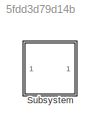
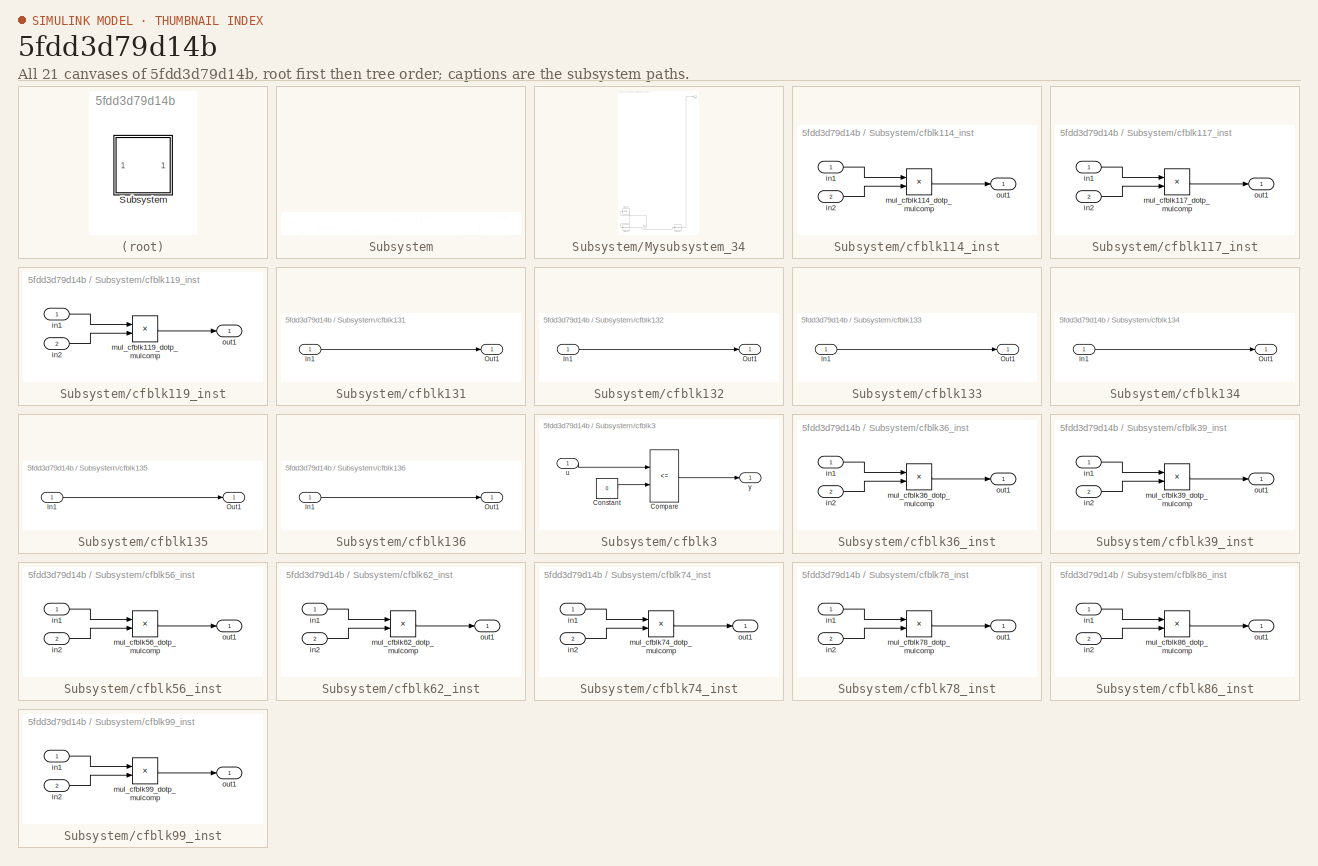
[diagram: thumbnail index - all 21 canvases of the model, root first then tree order]
MODEL slx_5fdd3d79d14b
KIND model
CONFIG AbsTol = auto
CONFIG EnableMultiTasking = off
CONFIG FixedStep = auto
CONFIG MaxStep = auto
CONFIG MinStep = auto
CONFIG RelTol = 1e-3
CONFIG SampleTimeConstraint = Unconstrained
CONFIG SolverName = VariableStepAuto
CONFIG StartTime = 0.0
CONFIG StopTime = 10.0
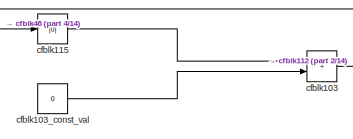
[diagram: Subsystem - part 1/14, top right region]
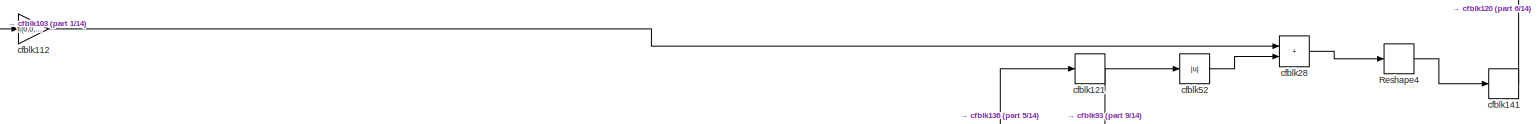
[diagram: Subsystem - part 2/14, top right region]
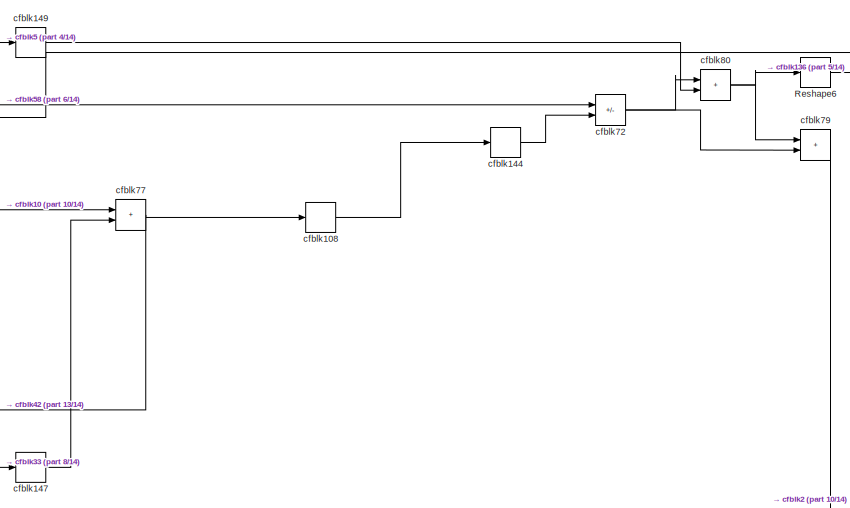
[diagram: Subsystem - part 3/14, middle right region]
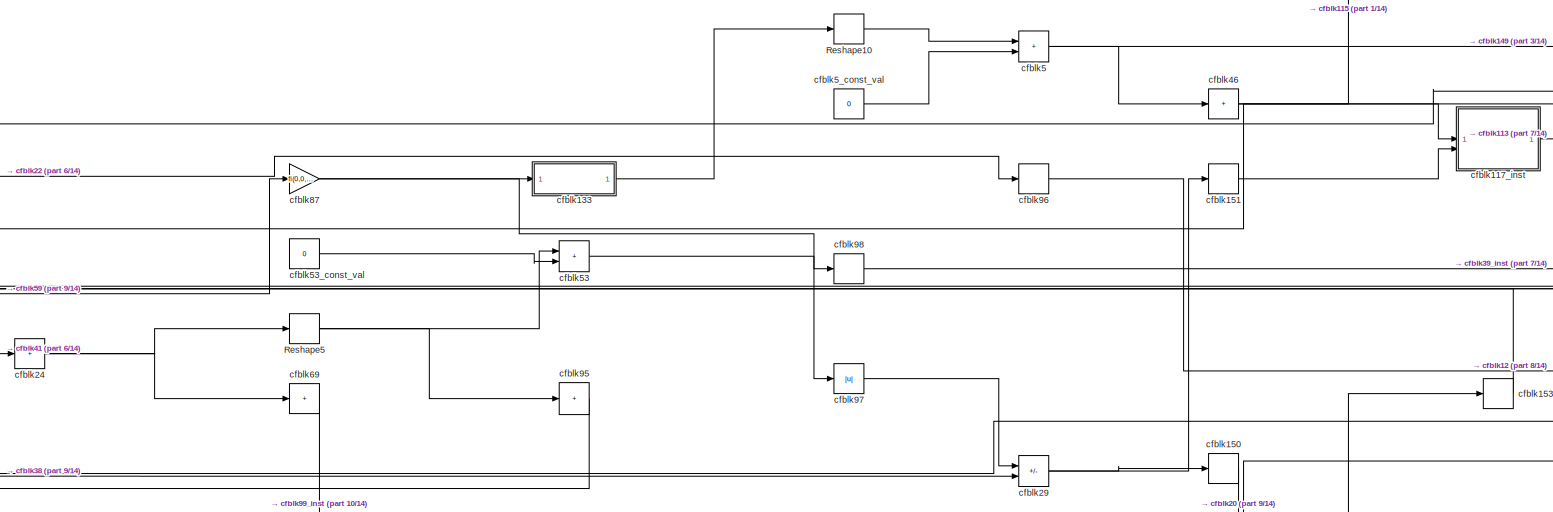
[diagram: Subsystem - part 4/14, central region]
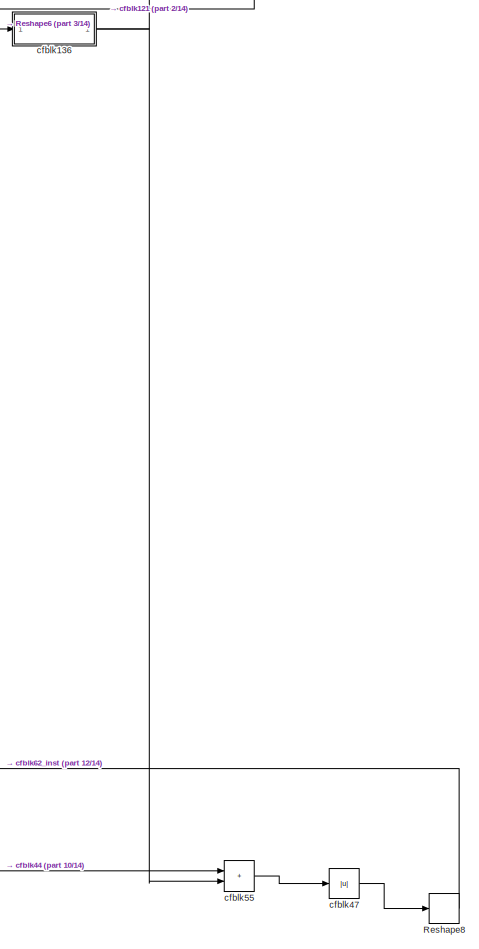
[diagram: Subsystem - part 5/14, right side, full height]
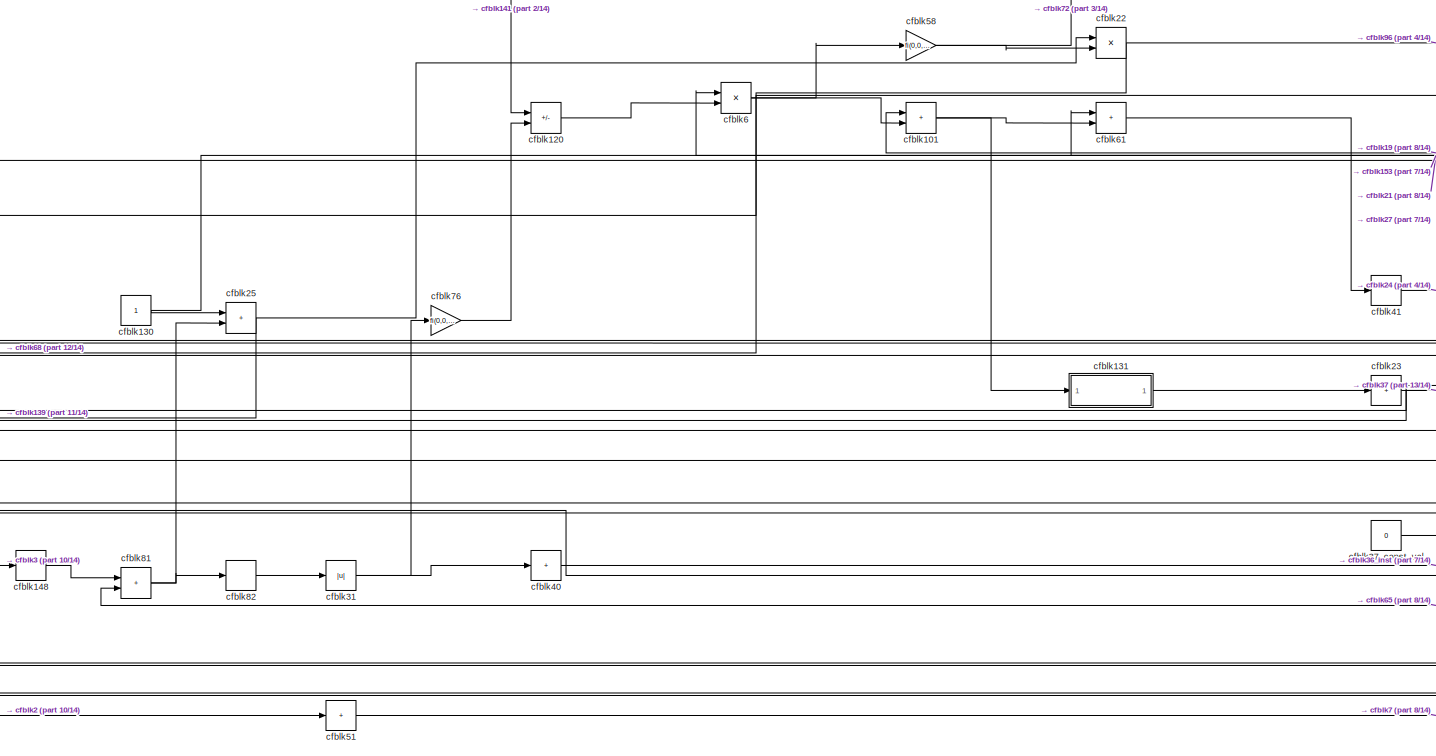
[diagram: Subsystem - part 6/14, central region]
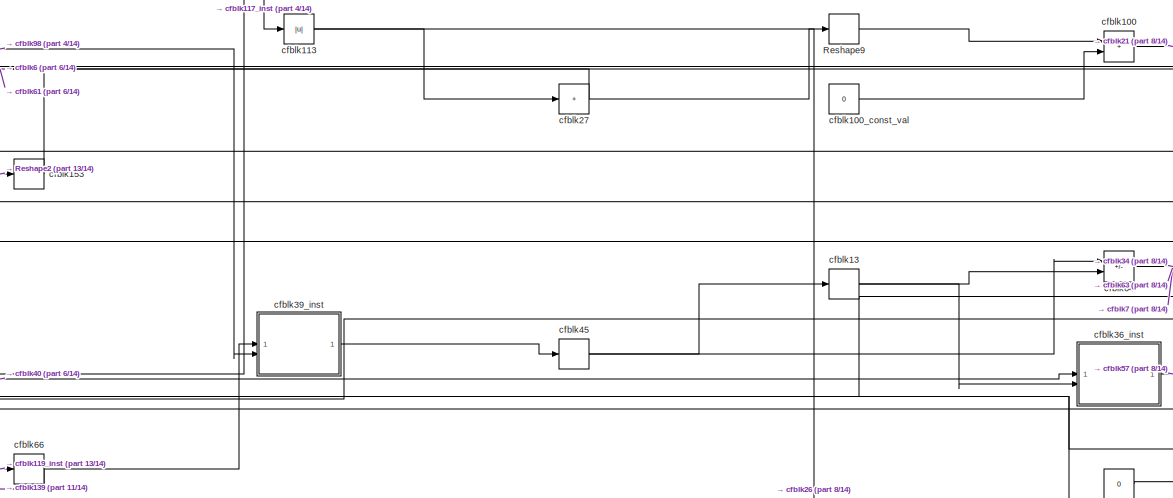
[diagram: Subsystem - part 7/14, middle right region]
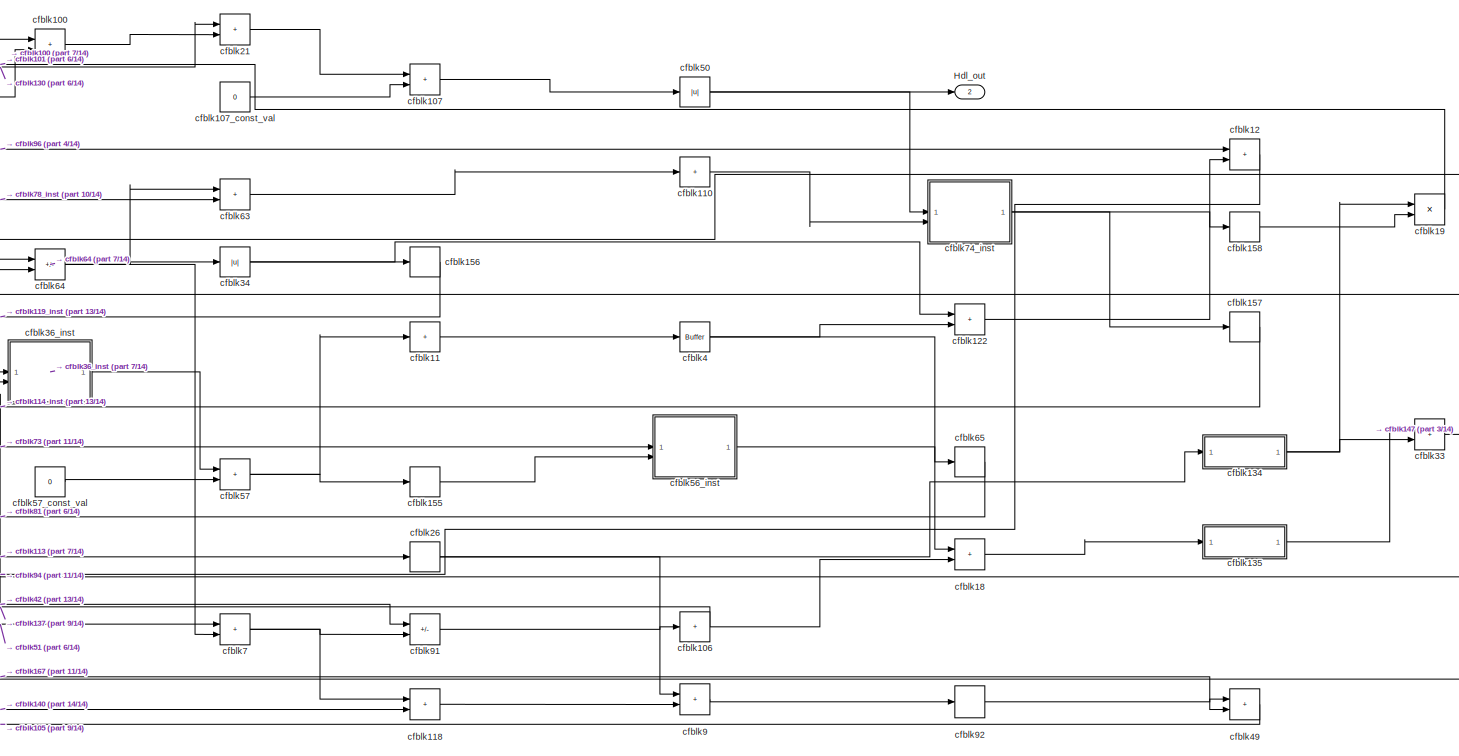
[diagram: Subsystem - part 8/14, middle right region]
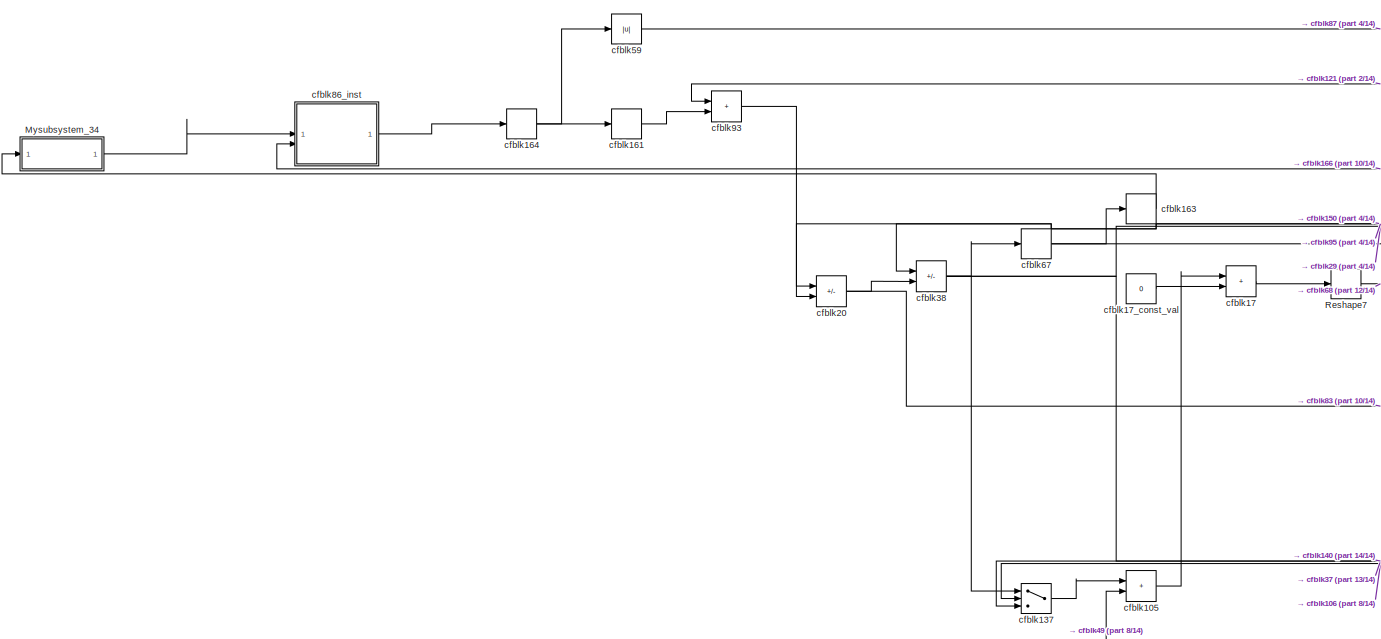
[diagram: Subsystem - part 9/14, middle left region]
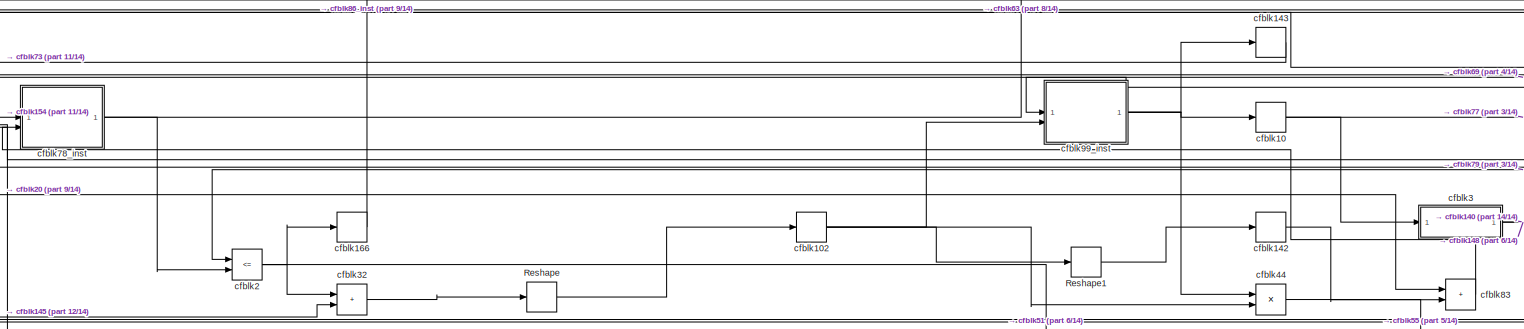
[diagram: Subsystem - part 10/14, bottom center region]
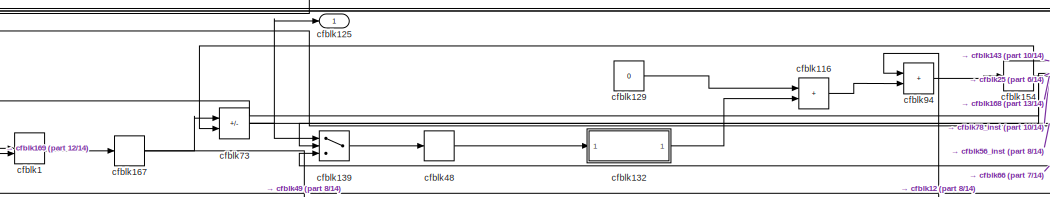
[diagram: Subsystem - part 11/14, middle left region]
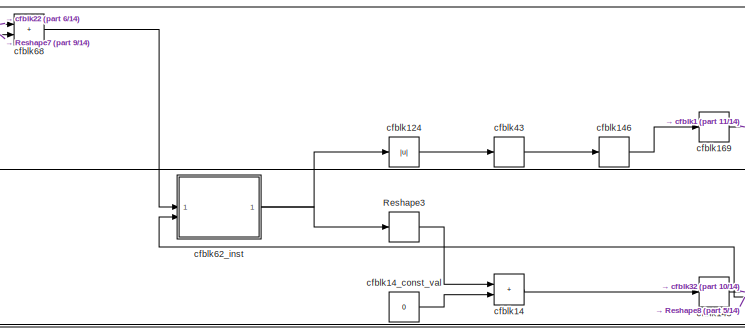
[diagram: Subsystem - part 12/14, bottom left region]
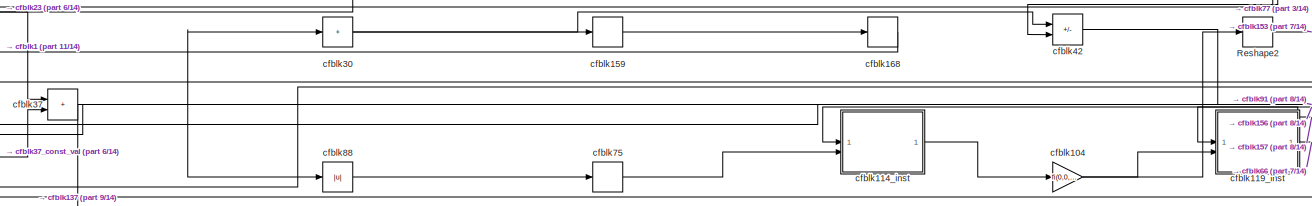
[diagram: Subsystem - part 13/14, bottom center region]
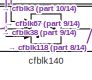
[diagram: Subsystem - part 14/14, bottom center region]
BLOCK [SubSystem] Subsystem
BLOCK [Outport] Subsystem/Hdl_out
  OutDataTypeStr = uint8
  Port = 2
  SampleTime = 1
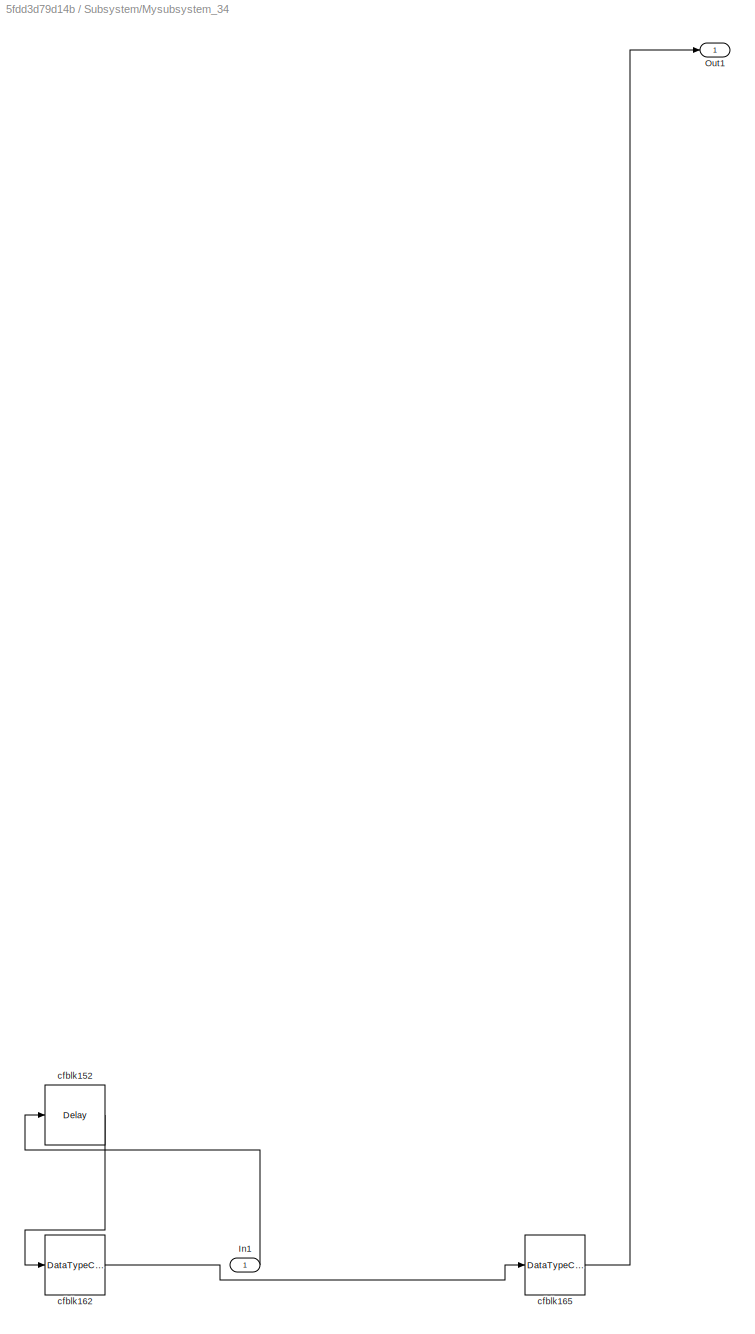
BLOCK [SubSystem] Subsystem/Mysubsystem_34
BLOCK [Inport] Subsystem/Mysubsystem_34/In1
  OutDataTypeStr = uint8
  PortDimensions = 1
  SampleTime = 1
BLOCK [Outport] Subsystem/Mysubsystem_34/Out1
  SampleTime = 1
BLOCK [Delay] Subsystem/Mysubsystem_34/cfblk152
  InputPortMap = u0
  SampleTime = 1
BLOCK [DataTypeConversion] Subsystem/Mysubsystem_34/cfblk162
  OutDataTypeStr = uint8
  RndMeth = Floor
  SaturateOnIntegerOverflow = off
BLOCK [DataTypeConversion] Subsystem/Mysubsystem_34/cfblk165
  OutDataTypeStr = uint8
  RndMeth = Floor
  SaturateOnIntegerOverflow = off
BLOCK [Reshape] Subsystem/Reshape
BLOCK [Reshape] Subsystem/Reshape1
BLOCK [Reshape] Subsystem/Reshape10
BLOCK [Reshape] Subsystem/Reshape2
BLOCK [Reshape] Subsystem/Reshape3
BLOCK [Reshape] Subsystem/Reshape4
BLOCK [Reshape] Subsystem/Reshape5
BLOCK [Reshape] Subsystem/Reshape6
BLOCK [Reshape] Subsystem/Reshape7
BLOCK [Reshape] Subsystem/Reshape8
BLOCK [Reshape] Subsystem/Reshape9
BLOCK [Reference] Subsystem/cfblk1  REF=hdlsllib/Logic and Bit
Operations/Bit Concat
  SourceBlock = hdlsllib/Logic and Bit\nOperations/Bit Concat
  SourceType = Bit Concat
BLOCK [Signum] Subsystem/cfblk10
  SampleTime = 1
BLOCK [Sum] Subsystem/cfblk100
  AccumDataTypeStr = uint8
  IconShape = rectangular
  OutDataTypeStr = uint8
  RndMeth = Nearest
  SampleTime = 1
BLOCK [Constant] Subsystem/cfblk100_const_val
  OutDataTypeStr = uint8
  SampleTime = 1
  Value = 0
  VectorParams1D = off
BLOCK [Sum] Subsystem/cfblk101
  AccumDataTypeStr = uint8
  IconShape = rectangular
  OutDataTypeStr = uint8
  SampleTime = 1
BLOCK [MinMax] Subsystem/cfblk102
  OutDataTypeStr = uint8
BLOCK [Sum] Subsystem/cfblk103
  AccumDataTypeStr = uint8
  IconShape = rectangular
  OutDataTypeStr = uint8
  RndMeth = Nearest
  SampleTime = 1
BLOCK [Constant] Subsystem/cfblk103_const_val
  OutDataTypeStr = uint8
  SampleTime = 1
  Value = 0
  VectorParams1D = off
BLOCK [Gain] Subsystem/cfblk104
  Gain = fi(0,0,8,7,"hex","80")
  OutDataTypeStr = uint8
  ParamDataTypeStr = fixdt(0, 8, 7)
  SampleTime = 1
BLOCK [Sum] Subsystem/cfblk105
  AccumDataTypeStr = uint8
  IconShape = rectangular
  OutDataTypeStr = uint8
  SampleTime = 1
BLOCK [Sum] Subsystem/cfblk106
  IconShape = rectangular
  Inputs = +
  OutDataTypeStr = uint8
BLOCK [Sum] Subsystem/cfblk107
  AccumDataTypeStr = uint8
  IconShape = rectangular
  OutDataTypeStr = uint8
  RndMeth = Nearest
  SampleTime = 1
BLOCK [Constant] Subsystem/cfblk107_const_val
  OutDataTypeStr = uint8
  SampleTime = 1
  Value = 0
  VectorParams1D = off
BLOCK [MinMax] Subsystem/cfblk108
  OutDataTypeStr = uint8
BLOCK [Sum] Subsystem/cfblk11
  IconShape = rectangular
  Inputs = +
  OutDataTypeStr = uint8
BLOCK [Sum] Subsystem/cfblk110
  IconShape = rectangular
  Inputs = +
  OutDataTypeStr = uint8
BLOCK [Gain] Subsystem/cfblk112
  Gain = fi(0,0,8,7,"hex","80")
  OutDataTypeStr = uint8
  ParamDataTypeStr = fixdt(0, 8, 7)
  SampleTime = 1
BLOCK [Abs] Subsystem/cfblk113
  OutDataTypeStr = uint8
  SampleTime = 1
  SaturateOnIntegerOverflow = off
BLOCK [SubSystem] Subsystem/cfblk114_inst
BLOCK [Inport] Subsystem/cfblk114_inst/in1
  OutDataTypeStr = uint8
  SampleTime = 1
BLOCK [Inport] Subsystem/cfblk114_inst/in2
  OutDataTypeStr = uint8
  Port = 2
  SampleTime = 1
BLOCK [Product] Subsystem/cfblk114_inst/mul_cfblk114_dotp_mulcomp
  Inputs = **
  OutDataTypeStr = uint8
  SampleTime = 1
BLOCK [Outport] Subsystem/cfblk114_inst/out1
  OutDataTypeStr = uint8
  SampleTime = 1
BLOCK [Abs] Subsystem/cfblk115
  OutDataTypeStr = uint8
  SampleTime = 1
  SaturateOnIntegerOverflow = off
BLOCK [Sum] Subsystem/cfblk116
  AccumDataTypeStr = uint8
  IconShape = rectangular
  OutDataTypeStr = uint8
  SampleTime = 1
BLOCK [SubSystem] Subsystem/cfblk117_inst
BLOCK [Inport] Subsystem/cfblk117_inst/in1
  OutDataTypeStr = uint8
  SampleTime = 1
BLOCK [Inport] Subsystem/cfblk117_inst/in2
  OutDataTypeStr = uint8
  Port = 2
  SampleTime = 1
BLOCK [Product] Subsystem/cfblk117_inst/mul_cfblk117_dotp_mulcomp
  Inputs = **
  OutDataTypeStr = uint8
  SampleTime = 1
BLOCK [Outport] Subsystem/cfblk117_inst/out1
  OutDataTypeStr = uint8
  SampleTime = 1
BLOCK [Sum] Subsystem/cfblk118
  AccumDataTypeStr = uint8
  IconShape = rectangular
  OutDataTypeStr = uint8
  SampleTime = 1
BLOCK [SubSystem] Subsystem/cfblk119_inst
BLOCK [Inport] Subsystem/cfblk119_inst/in1
  OutDataTypeStr = uint8
  SampleTime = 1
BLOCK [Inport] Subsystem/cfblk119_inst/in2
  OutDataTypeStr = uint8
  Port = 2
  SampleTime = 1
BLOCK [Product] Subsystem/cfblk119_inst/mul_cfblk119_dotp_mulcomp
  Inputs = **
  OutDataTypeStr = uint8
  SampleTime = 1
BLOCK [Outport] Subsystem/cfblk119_inst/out1
  OutDataTypeStr = uint8
  SampleTime = 1
BLOCK [Sum] Subsystem/cfblk12
  AccumDataTypeStr = uint8
  IconShape = rectangular
  OutDataTypeStr = uint8
  SampleTime = 1
BLOCK [Sum] Subsystem/cfblk120
  AccumDataTypeStr = uint8
  IconShape = rectangular
  Inputs = +-
  OutDataTypeStr = uint8
  SampleTime = 1
BLOCK [Signum] Subsystem/cfblk121
  SampleTime = 1
BLOCK [Sum] Subsystem/cfblk122
  AccumDataTypeStr = uint8
  IconShape = rectangular
  OutDataTypeStr = uint8
  SampleTime = 1
BLOCK [Abs] Subsystem/cfblk124
  OutDataTypeStr = uint8
  SampleTime = 1
  SaturateOnIntegerOverflow = off
BLOCK [Outport] Subsystem/cfblk125
  OutDataTypeStr = uint8
  SampleTime = 1
  VectorParamsAs1DForOutWhenUnconnected = off
BLOCK [Constant] Subsystem/cfblk129
  OutDataTypeStr = uint8
  SampleTime = 1
  Value = 0
  VectorParams1D = off
BLOCK [MinMax] Subsystem/cfblk13
  OutDataTypeStr = uint8
BLOCK [Constant] Subsystem/cfblk130
  OutDataTypeStr = uint8
  SampleTime = 1
BLOCK [SubSystem] Subsystem/cfblk131
BLOCK [Inport] Subsystem/cfblk131/In1
  OutDataTypeStr = uint8
  PortDimensions = 1
  SampleTime = 1
BLOCK [Outport] Subsystem/cfblk131/Out1
  SampleTime = 1
BLOCK [SubSystem] Subsystem/cfblk132
BLOCK [Inport] Subsystem/cfblk132/In1
  OutDataTypeStr = uint8
  PortDimensions = 1
  SampleTime = 1
BLOCK [Outport] Subsystem/cfblk132/Out1
  SampleTime = 1
BLOCK [SubSystem] Subsystem/cfblk133
BLOCK [Inport] Subsystem/cfblk133/In1
  OutDataTypeStr = uint8
  PortDimensions = 1
  SampleTime = 1
BLOCK [Outport] Subsystem/cfblk133/Out1
  SampleTime = 1
BLOCK [SubSystem] Subsystem/cfblk134
BLOCK [Inport] Subsystem/cfblk134/In1
  OutDataTypeStr = uint8
  PortDimensions = 1
  SampleTime = 1
BLOCK [Outport] Subsystem/cfblk134/Out1
  SampleTime = 1
BLOCK [SubSystem] Subsystem/cfblk135
BLOCK [Inport] Subsystem/cfblk135/In1
  OutDataTypeStr = uint8
  PortDimensions = 1
  SampleTime = 1
BLOCK [Outport] Subsystem/cfblk135/Out1
  SampleTime = 1
BLOCK [SubSystem] Subsystem/cfblk136
BLOCK [Inport] Subsystem/cfblk136/In1
  OutDataTypeStr = uint8
  PortDimensions = 1
  SampleTime = 1
BLOCK [Outport] Subsystem/cfblk136/Out1
  SampleTime = 1
BLOCK [Switch] Subsystem/cfblk137
  InputSameDT = off
  OutDataTypeStr = uint8
  SampleTime = 1
  SaturateOnIntegerOverflow = off
  Threshold = double(0)
BLOCK [Switch] Subsystem/cfblk139
  InputSameDT = off
  OutDataTypeStr = uint8
  SampleTime = 1
  SaturateOnIntegerOverflow = off
  Threshold = double(0)
BLOCK [Sum] Subsystem/cfblk14
  AccumDataTypeStr = uint8
  IconShape = rectangular
  OutDataTypeStr = uint8
  RndMeth = Nearest
  SampleTime = 1
BLOCK [Switch] Subsystem/cfblk140
  InputSameDT = off
  OutDataTypeStr = uint8
  SampleTime = 1
  SaturateOnIntegerOverflow = off
  Threshold = double(0)
BLOCK [Delay] Subsystem/cfblk141
  DelayLength = double(2)
  InitialCondition = 0
  InputPortMap = u0
  SampleTime = 1
BLOCK [Delay] Subsystem/cfblk142
  DelayLength = double(2)
  InitialCondition = 0
  InputPortMap = u0
  SampleTime = 1
BLOCK [Delay] Subsystem/cfblk143
  DelayLength = double(2)
  InitialCondition = 0
  InputPortMap = u0
  SampleTime = 1
BLOCK [Delay] Subsystem/cfblk144
  DelayLength = double(2)
  InitialCondition = 0
  InputPortMap = u0
  SampleTime = 1
BLOCK [Delay] Subsystem/cfblk145
  DelayLength = double(2)
  InitialCondition = 0
  InputPortMap = u0
  SampleTime = 1
BLOCK [Delay] Subsystem/cfblk146
  DelayLength = double(2)
  InitialCondition = 0
  InputPortMap = u0
  SampleTime = 1
BLOCK [Delay] Subsystem/cfblk147
  DelayLength = double(2)
  InitialCondition = 0
  InputPortMap = u0
  SampleTime = 1
BLOCK [Delay] Subsystem/cfblk148
  DelayLength = double(2)
  InitialCondition = 0
  InputPortMap = u0
  SampleTime = 1
BLOCK [Delay] Subsystem/cfblk149
  DelayLength = double(2)
  InitialCondition = 0
  InputPortMap = u0
  SampleTime = 1
BLOCK [Constant] Subsystem/cfblk14_const_val
  OutDataTypeStr = uint8
  SampleTime = 1
  Value = 0
  VectorParams1D = off
BLOCK [Delay] Subsystem/cfblk150
  DelayLength = double(2)
  InitialCondition = 0
  InputPortMap = u0
  SampleTime = 1
BLOCK [Delay] Subsystem/cfblk151
  DelayLength = double(2)
  InitialCondition = 0
  InputPortMap = u0
  SampleTime = 1
BLOCK [Delay] Subsystem/cfblk153
  DelayLength = double(2)
  InitialCondition = 0
  InputPortMap = u0
  SampleTime = 1
BLOCK [Delay] Subsystem/cfblk154
  DelayLength = double(2)
  InitialCondition = 0
  InputPortMap = u0
  SampleTime = 1
BLOCK [Delay] Subsystem/cfblk155
  DelayLength = double(2)
  InitialCondition = 0
  InputPortMap = u0
  SampleTime = 1
BLOCK [Delay] Subsystem/cfblk156
  DelayLength = double(2)
  InitialCondition = 0
  InputPortMap = u0
  SampleTime = 1
BLOCK [Delay] Subsystem/cfblk157
  DelayLength = double(2)
  InitialCondition = 0
  InputPortMap = u0
  SampleTime = 1
BLOCK [Delay] Subsystem/cfblk158
  DelayLength = double(2)
  InitialCondition = 0
  InputPortMap = u0
  SampleTime = 1
BLOCK [Delay] Subsystem/cfblk159
  DelayLength = double(2)
  InitialCondition = 0
  InputPortMap = u0
  SampleTime = 1
BLOCK [Delay] Subsystem/cfblk161
  DelayLength = double(2)
  InitialCondition = 0
  InputPortMap = u0
  SampleTime = 1
BLOCK [DataTypeConversion] Subsystem/cfblk163
  OutDataTypeStr = fixdt(0,8,0)
BLOCK [DataTypeConversion] Subsystem/cfblk164
  OutDataTypeStr = fixdt(0,8,0)
BLOCK [DataTypeConversion] Subsystem/cfblk166
  OutDataTypeStr = uint8
  RndMeth = Floor
  SampleTime = 1
  SaturateOnIntegerOverflow = off
BLOCK [DataTypeConversion] Subsystem/cfblk167
  OutDataTypeStr = uint8
  RndMeth = Floor
  SampleTime = 1
  SaturateOnIntegerOverflow = off
BLOCK [DataTypeConversion] Subsystem/cfblk168
  OutDataTypeStr = fixdt(0,8,0)
BLOCK [DataTypeConversion] Subsystem/cfblk169
  OutDataTypeStr = fixdt(0,8,0)
BLOCK [Sum] Subsystem/cfblk17
  AccumDataTypeStr = uint8
  IconShape = rectangular
  OutDataTypeStr = uint8
  RndMeth = Nearest
  SampleTime = 1
BLOCK [Constant] Subsystem/cfblk17_const_val
  OutDataTypeStr = uint8
  SampleTime = 1
  Value = 0
  VectorParams1D = off
BLOCK [Sum] Subsystem/cfblk18
  AccumDataTypeStr = uint8
  IconShape = rectangular
  OutDataTypeStr = uint8
  SampleTime = 1
BLOCK [Product] Subsystem/cfblk19
  Inputs = */
  OutDataTypeStr = uint8
  RndMeth = Zero
  SampleTime = 1
  SaturateOnIntegerOverflow = on
BLOCK [RelationalOperator] Subsystem/cfblk2
  InputSameDT = off
  Operator = <=
  OutDataTypeStr = boolean
  SampleTime = 1
BLOCK [Sum] Subsystem/cfblk20
  AccumDataTypeStr = uint8
  IconShape = rectangular
  Inputs = +-
  OutDataTypeStr = uint8
  SampleTime = 1
BLOCK [Sum] Subsystem/cfblk21
  AccumDataTypeStr = uint8
  IconShape = rectangular
  OutDataTypeStr = uint8
  SampleTime = 1
BLOCK [Product] Subsystem/cfblk22
  Inputs = */
  OutDataTypeStr = uint8
  RndMeth = Zero
  SampleTime = 1
  SaturateOnIntegerOverflow = on
BLOCK [Sum] Subsystem/cfblk23
  IconShape = rectangular
  Inputs = +
  OutDataTypeStr = uint8
BLOCK [Sum] Subsystem/cfblk24
  IconShape = rectangular
  Inputs = +
  OutDataTypeStr = uint8
BLOCK [Sum] Subsystem/cfblk25
  AccumDataTypeStr = uint8
  IconShape = rectangular
  OutDataTypeStr = uint8
  SampleTime = 1
BLOCK [Signum] Subsystem/cfblk26
  SampleTime = 1
BLOCK [Sum] Subsystem/cfblk27
  IconShape = rectangular
  Inputs = +
  OutDataTypeStr = uint8
BLOCK [Sum] Subsystem/cfblk28
  AccumDataTypeStr = uint8
  IconShape = rectangular
  OutDataTypeStr = uint8
  SampleTime = 1
BLOCK [Sum] Subsystem/cfblk29
  AccumDataTypeStr = uint8
  IconShape = rectangular
  Inputs = +-
  OutDataTypeStr = uint8
  SampleTime = 1
BLOCK [SubSystem] Subsystem/cfblk3
BLOCK [RelationalOperator] Subsystem/cfblk3/Compare
  Operator = <=
  OutDataTypeStr = fixdt(0, 8)
BLOCK [Constant] Subsystem/cfblk3/Constant
  DisableCoverage = on
  OutDataTypeStr = Inherit: Inherit via back propagation
  PreserveConstantTs = on
  SampleTime = -1
  Value = 0
BLOCK [Inport] Subsystem/cfblk3/u
  OutDataTypeStr = uint8
  SampleTime = 1
BLOCK [Outport] Subsystem/cfblk3/y
  SampleTime = 1
BLOCK [Sum] Subsystem/cfblk30
  IconShape = rectangular
  Inputs = +
  OutDataTypeStr = uint8
BLOCK [Abs] Subsystem/cfblk31
  OutDataTypeStr = uint8
  SampleTime = 1
  SaturateOnIntegerOverflow = off
BLOCK [Sum] Subsystem/cfblk32
  AccumDataTypeStr = uint32
  IconShape = rectangular
  OutDataTypeStr = uint8
  SampleTime = 1
BLOCK [Sum] Subsystem/cfblk33
  AccumDataTypeStr = uint8
  IconShape = rectangular
  OutDataTypeStr = uint8
  SampleTime = 1
BLOCK [Abs] Subsystem/cfblk34
  OutDataTypeStr = uint8
  SampleTime = 1
  SaturateOnIntegerOverflow = off
BLOCK [SubSystem] Subsystem/cfblk36_inst
BLOCK [Inport] Subsystem/cfblk36_inst/in1
  OutDataTypeStr = uint8
  SampleTime = 1
BLOCK [Inport] Subsystem/cfblk36_inst/in2
  OutDataTypeStr = uint8
  Port = 2
  SampleTime = 1
BLOCK [Product] Subsystem/cfblk36_inst/mul_cfblk36_dotp_mulcomp
  Inputs = **
  OutDataTypeStr = uint8
  SampleTime = 1
BLOCK [Outport] Subsystem/cfblk36_inst/out1
  OutDataTypeStr = uint8
  SampleTime = 1
BLOCK [Sum] Subsystem/cfblk37
  AccumDataTypeStr = uint8
  IconShape = rectangular
  OutDataTypeStr = uint8
  RndMeth = Nearest
  SampleTime = 1
BLOCK [Constant] Subsystem/cfblk37_const_val
  OutDataTypeStr = uint8
  SampleTime = 1
  Value = 0
  VectorParams1D = off
BLOCK [Sum] Subsystem/cfblk38
  AccumDataTypeStr = uint8
  IconShape = rectangular
  Inputs = +-
  OutDataTypeStr = uint8
  SampleTime = 1
BLOCK [SubSystem] Subsystem/cfblk39_inst
BLOCK [Inport] Subsystem/cfblk39_inst/in1
  OutDataTypeStr = uint8
  SampleTime = 1
BLOCK [Inport] Subsystem/cfblk39_inst/in2
  OutDataTypeStr = uint8
  Port = 2
  SampleTime = 1
BLOCK [Product] Subsystem/cfblk39_inst/mul_cfblk39_dotp_mulcomp
  Inputs = **
  OutDataTypeStr = uint8
  SampleTime = 1
BLOCK [Outport] Subsystem/cfblk39_inst/out1
  OutDataTypeStr = uint8
  SampleTime = 1
BLOCK [Reference] Subsystem/cfblk4  REF=hdlmdlgenlib/Buffer
  SourceBlock = hdlmdlgenlib/Buffer
  SourceType = Buffer/Wire
BLOCK [Sum] Subsystem/cfblk40
  IconShape = rectangular
  Inputs = +
  OutDataTypeStr = uint8
BLOCK [MinMax] Subsystem/cfblk41
  OutDataTypeStr = uint8
BLOCK [Sum] Subsystem/cfblk42
  AccumDataTypeStr = uint8
  IconShape = rectangular
  Inputs = +-
  OutDataTypeStr = uint8
  SampleTime = 1
BLOCK [Signum] Subsystem/cfblk43
  SampleTime = 1
BLOCK [Product] Subsystem/cfblk44
  Inputs = */
  OutDataTypeStr = uint8
  RndMeth = Zero
  SampleTime = 1
  SaturateOnIntegerOverflow = on
BLOCK [MinMax] Subsystem/cfblk45
  OutDataTypeStr = uint8
BLOCK [Sum] Subsystem/cfblk46
  IconShape = rectangular
  Inputs = +
  OutDataTypeStr = uint8
BLOCK [Abs] Subsystem/cfblk47
  OutDataTypeStr = uint8
  SampleTime = 1
  SaturateOnIntegerOverflow = off
BLOCK [Signum] Subsystem/cfblk48
  SampleTime = 1
BLOCK [Sum] Subsystem/cfblk49
  AccumDataTypeStr = uint8
  IconShape = rectangular
  OutDataTypeStr = uint8
  SampleTime = 1
BLOCK [Sum] Subsystem/cfblk5
  AccumDataTypeStr = uint8
  IconShape = rectangular
  OutDataTypeStr = uint8
  RndMeth = Nearest
  SampleTime = 1
BLOCK [Abs] Subsystem/cfblk50
  OutDataTypeStr = uint8
  SampleTime = 1
  SaturateOnIntegerOverflow = off
BLOCK [Sum] Subsystem/cfblk51
  IconShape = rectangular
  Inputs = +
  OutDataTypeStr = uint8
BLOCK [Abs] Subsystem/cfblk52
  OutDataTypeStr = uint8
  SampleTime = 1
  SaturateOnIntegerOverflow = off
BLOCK [Sum] Subsystem/cfblk53
  AccumDataTypeStr = uint8
  IconShape = rectangular
  OutDataTypeStr = uint8
  RndMeth = Nearest
  SampleTime = 1
BLOCK [Constant] Subsystem/cfblk53_const_val
  OutDataTypeStr = uint8
  SampleTime = 1
  Value = 0
  VectorParams1D = off
BLOCK [Sum] Subsystem/cfblk55
  AccumDataTypeStr = uint8
  IconShape = rectangular
  OutDataTypeStr = uint8
  SampleTime = 1
BLOCK [SubSystem] Subsystem/cfblk56_inst
BLOCK [Inport] Subsystem/cfblk56_inst/in1
  OutDataTypeStr = uint8
  SampleTime = 1
BLOCK [Inport] Subsystem/cfblk56_inst/in2
  OutDataTypeStr = uint8
  Port = 2
  SampleTime = 1
BLOCK [Product] Subsystem/cfblk56_inst/mul_cfblk56_dotp_mulcomp
  Inputs = **
  OutDataTypeStr = uint8
  SampleTime = 1
BLOCK [Outport] Subsystem/cfblk56_inst/out1
  OutDataTypeStr = uint8
  SampleTime = 1
BLOCK [Sum] Subsystem/cfblk57
  AccumDataTypeStr = uint8
  IconShape = rectangular
  OutDataTypeStr = uint8
  RndMeth = Nearest
  SampleTime = 1
BLOCK [Constant] Subsystem/cfblk57_const_val
  OutDataTypeStr = uint8
  SampleTime = 1
  Value = 0
  VectorParams1D = off
BLOCK [Gain] Subsystem/cfblk58
  Gain = fi(0,0,8,7,"hex","80")
  OutDataTypeStr = uint8
  ParamDataTypeStr = fixdt(0, 8, 7)
  SampleTime = 1
BLOCK [Abs] Subsystem/cfblk59
  OutDataTypeStr = uint8
  SampleTime = 1
  SaturateOnIntegerOverflow = off
BLOCK [Constant] Subsystem/cfblk5_const_val
  OutDataTypeStr = uint8
  SampleTime = 1
  Value = 0
  VectorParams1D = off
BLOCK [Product] Subsystem/cfblk6
  Inputs = */
  OutDataTypeStr = uint8
  RndMeth = Zero
  SampleTime = 1
  SaturateOnIntegerOverflow = on
BLOCK [Sum] Subsystem/cfblk61
  AccumDataTypeStr = uint8
  IconShape = rectangular
  OutDataTypeStr = uint8
  SampleTime = 1
BLOCK [SubSystem] Subsystem/cfblk62_inst
BLOCK [Inport] Subsystem/cfblk62_inst/in1
  OutDataTypeStr = uint8
  SampleTime = 1
BLOCK [Inport] Subsystem/cfblk62_inst/in2
  OutDataTypeStr = uint8
  Port = 2
  SampleTime = 1
BLOCK [Product] Subsystem/cfblk62_inst/mul_cfblk62_dotp_mulcomp
  Inputs = **
  OutDataTypeStr = uint8
  SampleTime = 1
BLOCK [Outport] Subsystem/cfblk62_inst/out1
  OutDataTypeStr = uint8
  SampleTime = 1
BLOCK [Sum] Subsystem/cfblk63
  AccumDataTypeStr = uint8
  IconShape = rectangular
  OutDataTypeStr = uint8
  SampleTime = 1
BLOCK [Sum] Subsystem/cfblk64
  AccumDataTypeStr = uint8
  IconShape = rectangular
  Inputs = +-
  OutDataTypeStr = uint8
  SampleTime = 1
BLOCK [Signum] Subsystem/cfblk65
  SampleTime = 1
BLOCK [Signum] Subsystem/cfblk66
  SampleTime = 1
BLOCK [Signum] Subsystem/cfblk67
  SampleTime = 1
BLOCK [Sum] Subsystem/cfblk68
  AccumDataTypeStr = uint8
  IconShape = rectangular
  OutDataTypeStr = uint8
  SampleTime = 1
BLOCK [Sum] Subsystem/cfblk69
  IconShape = rectangular
  Inputs = +
  OutDataTypeStr = uint8
BLOCK [Sum] Subsystem/cfblk7
  AccumDataTypeStr = uint8
  IconShape = rectangular
  OutDataTypeStr = uint8
  SampleTime = 1
BLOCK [Sum] Subsystem/cfblk72
  AccumDataTypeStr = uint8
  IconShape = rectangular
  Inputs = +-
  OutDataTypeStr = uint8
  SampleTime = 1
BLOCK [Sum] Subsystem/cfblk73
  AccumDataTypeStr = uint8
  IconShape = rectangular
  Inputs = +-
  OutDataTypeStr = uint8
  SampleTime = 1
BLOCK [SubSystem] Subsystem/cfblk74_inst
BLOCK [Inport] Subsystem/cfblk74_inst/in1
  OutDataTypeStr = uint8
  SampleTime = 1
BLOCK [Inport] Subsystem/cfblk74_inst/in2
  OutDataTypeStr = uint8
  Port = 2
  SampleTime = 1
BLOCK [Product] Subsystem/cfblk74_inst/mul_cfblk74_dotp_mulcomp
  Inputs = **
  OutDataTypeStr = uint8
  SampleTime = 1
BLOCK [Outport] Subsystem/cfblk74_inst/out1
  OutDataTypeStr = uint8
  SampleTime = 1
BLOCK [MinMax] Subsystem/cfblk75
  OutDataTypeStr = uint8
BLOCK [Gain] Subsystem/cfblk76
  Gain = fi(0,0,8,7,"hex","80")
  OutDataTypeStr = uint8
  ParamDataTypeStr = fixdt(0, 8, 7)
  SampleTime = 1
BLOCK [Sum] Subsystem/cfblk77
  AccumDataTypeStr = uint8
  IconShape = rectangular
  OutDataTypeStr = uint8
  SampleTime = 1
BLOCK [SubSystem] Subsystem/cfblk78_inst
BLOCK [Inport] Subsystem/cfblk78_inst/in1
  OutDataTypeStr = uint8
  SampleTime = 1
BLOCK [Inport] Subsystem/cfblk78_inst/in2
  OutDataTypeStr = uint8
  Port = 2
  SampleTime = 1
BLOCK [Product] Subsystem/cfblk78_inst/mul_cfblk78_dotp_mulcomp
  Inputs = **
  OutDataTypeStr = uint8
  SampleTime = 1
BLOCK [Outport] Subsystem/cfblk78_inst/out1
  OutDataTypeStr = uint8
  SampleTime = 1
BLOCK [Sum] Subsystem/cfblk79
  AccumDataTypeStr = uint8
  IconShape = rectangular
  OutDataTypeStr = uint8
  SampleTime = 1
BLOCK [Sum] Subsystem/cfblk80
  AccumDataTypeStr = uint8
  IconShape = rectangular
  OutDataTypeStr = uint8
  SampleTime = 1
BLOCK [Sum] Subsystem/cfblk81
  AccumDataTypeStr = uint8
  IconShape = rectangular
  OutDataTypeStr = uint8
  SampleTime = 1
BLOCK [Signum] Subsystem/cfblk82
  SampleTime = 1
BLOCK [Sum] Subsystem/cfblk83
  AccumDataTypeStr = uint8
  IconShape = rectangular
  OutDataTypeStr = uint8
  SampleTime = 1
BLOCK [SubSystem] Subsystem/cfblk86_inst
BLOCK [Inport] Subsystem/cfblk86_inst/in1
  OutDataTypeStr = uint8
  SampleTime = 1
BLOCK [Inport] Subsystem/cfblk86_inst/in2
  OutDataTypeStr = uint8
  Port = 2
  SampleTime = 1
BLOCK [Product] Subsystem/cfblk86_inst/mul_cfblk86_dotp_mulcomp
  Inputs = **
  OutDataTypeStr = uint8
  SampleTime = 1
BLOCK [Outport] Subsystem/cfblk86_inst/out1
  OutDataTypeStr = uint8
  SampleTime = 1
BLOCK [Gain] Subsystem/cfblk87
  Gain = fi(0,0,8,7,"hex","80")
  OutDataTypeStr = uint8
  ParamDataTypeStr = fixdt(0, 8, 7)
  SampleTime = 1
BLOCK [Abs] Subsystem/cfblk88
  OutDataTypeStr = uint8
  SampleTime = 1
  SaturateOnIntegerOverflow = off
BLOCK [Sum] Subsystem/cfblk9
  AccumDataTypeStr = uint8
  IconShape = rectangular
  OutDataTypeStr = uint8
  SampleTime = 1
BLOCK [Sum] Subsystem/cfblk91
  AccumDataTypeStr = uint8
  IconShape = rectangular
  Inputs = +-
  OutDataTypeStr = uint8
  SampleTime = 1
BLOCK [Signum] Subsystem/cfblk92
  SampleTime = 1
BLOCK [Sum] Subsystem/cfblk93
  AccumDataTypeStr = uint8
  IconShape = rectangular
  OutDataTypeStr = uint8
  SampleTime = 1
BLOCK [Sum] Subsystem/cfblk94
  AccumDataTypeStr = uint8
  IconShape = rectangular
  OutDataTypeStr = uint8
  SampleTime = 1
BLOCK [Sum] Subsystem/cfblk95
  IconShape = rectangular
  Inputs = +
  OutDataTypeStr = uint8
BLOCK [MinMax] Subsystem/cfblk96
  OutDataTypeStr = uint8
BLOCK [Abs] Subsystem/cfblk97
  OutDataTypeStr = uint8
  SampleTime = 1
  SaturateOnIntegerOverflow = off
BLOCK [Signum] Subsystem/cfblk98
  SampleTime = 1
BLOCK [SubSystem] Subsystem/cfblk99_inst
BLOCK [Inport] Subsystem/cfblk99_inst/in1
  OutDataTypeStr = uint8
  SampleTime = 1
BLOCK [Inport] Subsystem/cfblk99_inst/in2
  OutDataTypeStr = uint8
  Port = 2
  SampleTime = 1
BLOCK [Product] Subsystem/cfblk99_inst/mul_cfblk99_dotp_mulcomp
  Inputs = **
  OutDataTypeStr = uint8
  SampleTime = 1
BLOCK [Outport] Subsystem/cfblk99_inst/out1
  OutDataTypeStr = uint8
  SampleTime = 1
LINE Subsystem/Mysubsystem_34/In1:1 -> Subsystem/Mysubsystem_34/cfblk152:1
LINE Subsystem/Mysubsystem_34/cfblk152:1 -> Subsystem/Mysubsystem_34/cfblk162:1
LINE Subsystem/Mysubsystem_34/cfblk162:1 -> Subsystem/Mysubsystem_34/cfblk165:1
LINE Subsystem/Mysubsystem_34/cfblk165:1 -> Subsystem/Mysubsystem_34/Out1:1
LINE Subsystem/Mysubsystem_34:1 -> Subsystem/cfblk86_inst:1
LINE Subsystem/Reshape10:1 -> Subsystem/cfblk5:1
LINE Subsystem/Reshape1:1 -> Subsystem/cfblk142:1
LINE Subsystem/Reshape2:1 -> Subsystem/cfblk153:1
LINE Subsystem/Reshape3:1 -> Subsystem/cfblk14:1
LINE Subsystem/Reshape4:1 -> Subsystem/cfblk141:1
NET Subsystem/Reshape5:1 -> Subsystem/cfblk53:1, Subsystem/cfblk95:1
LINE Subsystem/Reshape6:1 -> Subsystem/cfblk136:1
LINE Subsystem/Reshape7:1 -> Subsystem/cfblk68:2
LINE Subsystem/Reshape8:1 -> Subsystem/cfblk62_inst:2
LINE Subsystem/Reshape9:1 -> Subsystem/cfblk100:1
LINE Subsystem/Reshape:1 -> Subsystem/cfblk102:1
LINE Subsystem/cfblk100:1 -> Subsystem/cfblk21:2
LINE Subsystem/cfblk100_const_val:1 -> Subsystem/cfblk100:2
NET Subsystem/cfblk101:1 -> Subsystem/cfblk131:1, Subsystem/cfblk61:2
NET Subsystem/cfblk102:1 -> Subsystem/Reshape1:1, Subsystem/cfblk44:2, Subsystem/cfblk99_inst:2
LINE Subsystem/cfblk103:1 -> Subsystem/cfblk112:1
LINE Subsystem/cfblk103_const_val:1 -> Subsystem/cfblk103:2
NET Subsystem/cfblk104:1 -> Subsystem/Reshape2:1, Subsystem/cfblk119_inst:2
LINE Subsystem/cfblk105:1 -> Subsystem/cfblk17:1
NET Subsystem/cfblk106:1 -> Subsystem/cfblk137:2, Subsystem/cfblk18:2
LINE Subsystem/cfblk107:1 -> Subsystem/cfblk50:1
LINE Subsystem/cfblk107_const_val:1 -> Subsystem/cfblk107:2
LINE Subsystem/cfblk108:1 -> Subsystem/cfblk144:1
NET Subsystem/cfblk10:1 -> Subsystem/cfblk3:1, Subsystem/cfblk77:1
LINE Subsystem/cfblk110:1 -> Subsystem/cfblk74_inst:2
LINE Subsystem/cfblk112:1 -> Subsystem/cfblk28:1
NET Subsystem/cfblk113:1 -> Subsystem/cfblk26:1, Subsystem/cfblk27:1
LINE Subsystem/cfblk114_inst/in1:1 -> Subsystem/cfblk114_inst/mul_cfblk114_dotp_mulcomp:1
LINE Subsystem/cfblk114_inst/in2:1 -> Subsystem/cfblk114_inst/mul_cfblk114_dotp_mulcomp:2
LINE Subsystem/cfblk114_inst/mul_cfblk114_dotp_mulcomp:1 -> Subsystem/cfblk114_inst/out1:1
LINE Subsystem/cfblk114_inst:1 -> Subsystem/cfblk104:1
LINE Subsystem/cfblk115:1 -> Subsystem/cfblk103:1
LINE Subsystem/cfblk116:1 -> Subsystem/cfblk94:2
LINE Subsystem/cfblk117_inst/in1:1 -> Subsystem/cfblk117_inst/mul_cfblk117_dotp_mulcomp:1
LINE Subsystem/cfblk117_inst/in2:1 -> Subsystem/cfblk117_inst/mul_cfblk117_dotp_mulcomp:2
LINE Subsystem/cfblk117_inst/mul_cfblk117_dotp_mulcomp:1 -> Subsystem/cfblk117_inst/out1:1
LINE Subsystem/cfblk117_inst:1 -> Subsystem/cfblk113:1
LINE Subsystem/cfblk118:1 -> Subsystem/cfblk9:2
LINE Subsystem/cfblk119_inst/in1:1 -> Subsystem/cfblk119_inst/mul_cfblk119_dotp_mulcomp:1
LINE Subsystem/cfblk119_inst/in2:1 -> Subsystem/cfblk119_inst/mul_cfblk119_dotp_mulcomp:2
LINE Subsystem/cfblk119_inst/mul_cfblk119_dotp_mulcomp:1 -> Subsystem/cfblk119_inst/out1:1
LINE Subsystem/cfblk119_inst:1 -> Subsystem/cfblk66:1
LINE Subsystem/cfblk11:1 -> Subsystem/cfblk4:1
LINE Subsystem/cfblk120:1 -> Subsystem/cfblk6:2
NET Subsystem/cfblk121:1 -> Subsystem/cfblk52:1, Subsystem/cfblk93:1
LINE Subsystem/cfblk122:1 -> Subsystem/cfblk12:2
LINE Subsystem/cfblk124:1 -> Subsystem/cfblk43:1
LINE Subsystem/cfblk129:1 -> Subsystem/cfblk116:1
LINE Subsystem/cfblk12:1 -> Subsystem/cfblk94:1
NET Subsystem/cfblk130:1 -> Subsystem/cfblk21:1, Subsystem/cfblk25:1
LINE Subsystem/cfblk131/In1:1 -> Subsystem/cfblk131/Out1:1
LINE Subsystem/cfblk131:1 -> Subsystem/cfblk23:1
LINE Subsystem/cfblk132/In1:1 -> Subsystem/cfblk132/Out1:1
LINE Subsystem/cfblk132:1 -> Subsystem/cfblk116:2
LINE Subsystem/cfblk133/In1:1 -> Subsystem/cfblk133/Out1:1
LINE Subsystem/cfblk133:1 -> Subsystem/Reshape10:1
LINE Subsystem/cfblk134/In1:1 -> Subsystem/cfblk134/Out1:1
NET Subsystem/cfblk134:1 -> Subsystem/cfblk19:1, Subsystem/cfblk33:2
LINE Subsystem/cfblk135/In1:1 -> Subsystem/cfblk135/Out1:1
LINE Subsystem/cfblk135:1 -> Subsystem/cfblk33:1
LINE Subsystem/cfblk136/In1:1 -> Subsystem/cfblk136/Out1:1
NET Subsystem/cfblk136:1 -> Subsystem/cfblk121:1, Subsystem/cfblk55:2
LINE Subsystem/cfblk137:1 -> Subsystem/cfblk105:1
LINE Subsystem/cfblk139:1 -> Subsystem/cfblk48:1
NET Subsystem/cfblk13:1 -> Subsystem/cfblk36_inst:2, Subsystem/cfblk64:2
LINE Subsystem/cfblk140:1 -> Subsystem/cfblk118:2
LINE Subsystem/cfblk141:1 -> Subsystem/cfblk120:1
LINE Subsystem/cfblk142:1 -> Subsystem/cfblk83:2
LINE Subsystem/cfblk143:1 -> Subsystem/cfblk73:2
LINE Subsystem/cfblk144:1 -> Subsystem/cfblk72:2
LINE Subsystem/cfblk145:1 -> Subsystem/cfblk32:2
LINE Subsystem/cfblk146:1 -> Subsystem/cfblk169:1
LINE Subsystem/cfblk147:1 -> Subsystem/cfblk77:2
LINE Subsystem/cfblk148:1 -> Subsystem/cfblk81:1
LINE Subsystem/cfblk149:1 -> Subsystem/cfblk80:2
LINE Subsystem/cfblk14:1 -> Subsystem/cfblk145:1
LINE Subsystem/cfblk14_const_val:1 -> Subsystem/cfblk14:2
LINE Subsystem/cfblk150:1 -> Subsystem/cfblk20:2
LINE Subsystem/cfblk151:1 -> Subsystem/cfblk117_inst:2
LINE Subsystem/cfblk153:1 -> Subsystem/cfblk6:1
LINE Subsystem/cfblk154:1 -> Subsystem/cfblk78_inst:1
LINE Subsystem/cfblk155:1 -> Subsystem/cfblk56_inst:2
LINE Subsystem/cfblk156:1 -> Subsystem/cfblk119_inst:1
LINE Subsystem/cfblk157:1 -> Subsystem/cfblk114_inst:1
LINE Subsystem/cfblk158:1 -> Subsystem/cfblk19:2
LINE Subsystem/cfblk159:1 -> Subsystem/cfblk168:1
LINE Subsystem/cfblk161:1 -> Subsystem/cfblk93:2
LINE Subsystem/cfblk163:1 -> Subsystem/Mysubsystem_34:1
NET Subsystem/cfblk164:1 -> Subsystem/cfblk161:1, Subsystem/cfblk59:1
LINE Subsystem/cfblk166:1 -> Subsystem/cfblk86_inst:2
NET Subsystem/cfblk167:1 -> Subsystem/cfblk49:2, Subsystem/cfblk73:1
LINE Subsystem/cfblk168:1 -> Subsystem/cfblk1:1
LINE Subsystem/cfblk169:1 -> Subsystem/cfblk1:2
LINE Subsystem/cfblk17:1 -> Subsystem/Reshape7:1
LINE Subsystem/cfblk17_const_val:1 -> Subsystem/cfblk17:2
LINE Subsystem/cfblk18:1 -> Subsystem/cfblk135:1
LINE Subsystem/cfblk19:1 -> Subsystem/cfblk101:1
LINE Subsystem/cfblk1:1 -> Subsystem/cfblk167:1
NET Subsystem/cfblk20:1 -> Subsystem/cfblk38:2, Subsystem/cfblk83:1
LINE Subsystem/cfblk21:1 -> Subsystem/cfblk107:1
NET Subsystem/cfblk22:1 -> Subsystem/cfblk68:1, Subsystem/cfblk96:1
LINE Subsystem/cfblk23:1 -> Subsystem/cfblk37:1
NET Subsystem/cfblk24:1 -> Subsystem/Reshape5:1, Subsystem/cfblk69:1
NET Subsystem/cfblk25:1 -> Subsystem/cfblk139:2, Subsystem/cfblk22:1
NET Subsystem/cfblk26:1 -> Subsystem/cfblk134:1, Subsystem/cfblk9:1
NET Subsystem/cfblk27:1 -> Subsystem/Reshape9:1, Subsystem/cfblk61:1
LINE Subsystem/cfblk28:1 -> Subsystem/Reshape4:1
NET Subsystem/cfblk29:1 -> Subsystem/cfblk150:1, Subsystem/cfblk151:1
NET Subsystem/cfblk2:1 -> Subsystem/cfblk166:1, Subsystem/cfblk32:1, Subsystem/cfblk51:1
NET Subsystem/cfblk30:1 -> Subsystem/cfblk159:1, Subsystem/cfblk42:1
NET Subsystem/cfblk31:1 -> Subsystem/cfblk40:1, Subsystem/cfblk76:1
LINE Subsystem/cfblk32:1 -> Subsystem/Reshape:1
LINE Subsystem/cfblk33:1 -> Subsystem/cfblk147:1
NET Subsystem/cfblk34:1 -> Subsystem/cfblk122:1, Subsystem/cfblk156:1
LINE Subsystem/cfblk36_inst/in1:1 -> Subsystem/cfblk36_inst/mul_cfblk36_dotp_mulcomp:1
LINE Subsystem/cfblk36_inst/in2:1 -> Subsystem/cfblk36_inst/mul_cfblk36_dotp_mulcomp:2
LINE Subsystem/cfblk36_inst/mul_cfblk36_dotp_mulcomp:1 -> Subsystem/cfblk36_inst/out1:1
LINE Subsystem/cfblk36_inst:1 -> Subsystem/cfblk57:1
NET Subsystem/cfblk37:1 -> Subsystem/cfblk137:3, Subsystem/cfblk30:1, Subsystem/cfblk88:1
LINE Subsystem/cfblk37_const_val:1 -> Subsystem/cfblk37:2
NET Subsystem/cfblk38:1 -> Subsystem/cfblk137:1, Subsystem/cfblk140:3, Subsystem/cfblk29:2, Subsystem/cfblk67:1
LINE Subsystem/cfblk39_inst/in1:1 -> Subsystem/cfblk39_inst/mul_cfblk39_dotp_mulcomp:1
LINE Subsystem/cfblk39_inst/in2:1 -> Subsystem/cfblk39_inst/mul_cfblk39_dotp_mulcomp:2
LINE Subsystem/cfblk39_inst/mul_cfblk39_dotp_mulcomp:1 -> Subsystem/cfblk39_inst/out1:1
LINE Subsystem/cfblk39_inst:1 -> Subsystem/cfblk45:1
NET Subsystem/cfblk3:1 -> Subsystem/cfblk140:1, Subsystem/cfblk148:1
LINE Subsystem/cfblk40:1 -> Subsystem/cfblk36_inst:1
LINE Subsystem/cfblk41:1 -> Subsystem/cfblk24:1
LINE Subsystem/cfblk42:1 -> Subsystem/cfblk91:1
LINE Subsystem/cfblk43:1 -> Subsystem/cfblk146:1
LINE Subsystem/cfblk44:1 -> Subsystem/cfblk55:1
NET Subsystem/cfblk45:1 -> Subsystem/cfblk13:1, Subsystem/cfblk64:1
NET Subsystem/cfblk46:1 -> Subsystem/cfblk115:1, Subsystem/cfblk117_inst:1
LINE Subsystem/cfblk47:1 -> Subsystem/Reshape8:1
LINE Subsystem/cfblk48:1 -> Subsystem/cfblk132:1
LINE Subsystem/cfblk49:1 -> Subsystem/cfblk105:2
NET Subsystem/cfblk4:1 -> Subsystem/cfblk122:2, Subsystem/cfblk18:1
NET Subsystem/cfblk50:1 -> Subsystem/Hdl_out:1, Subsystem/cfblk74_inst:1
LINE Subsystem/cfblk51:1 -> Subsystem/cfblk7:1
LINE Subsystem/cfblk52:1 -> Subsystem/cfblk28:2
LINE Subsystem/cfblk53:1 -> Subsystem/cfblk97:1
LINE Subsystem/cfblk53_const_val:1 -> Subsystem/cfblk53:2
LINE Subsystem/cfblk55:1 -> Subsystem/cfblk47:1
LINE Subsystem/cfblk56_inst/in1:1 -> Subsystem/cfblk56_inst/mul_cfblk56_dotp_mulcomp:1
LINE Subsystem/cfblk56_inst/in2:1 -> Subsystem/cfblk56_inst/mul_cfblk56_dotp_mulcomp:2
LINE Subsystem/cfblk56_inst/mul_cfblk56_dotp_mulcomp:1 -> Subsystem/cfblk56_inst/out1:1
LINE Subsystem/cfblk56_inst:1 -> Subsystem/cfblk65:1
NET Subsystem/cfblk57:1 -> Subsystem/cfblk11:1, Subsystem/cfblk155:1
LINE Subsystem/cfblk57_const_val:1 -> Subsystem/cfblk57:2
NET Subsystem/cfblk58:1 -> Subsystem/cfblk22:2, Subsystem/cfblk72:1
LINE Subsystem/cfblk59:1 -> Subsystem/cfblk87:1
NET Subsystem/cfblk5:1 -> Subsystem/cfblk149:1, Subsystem/cfblk46:1
LINE Subsystem/cfblk5_const_val:1 -> Subsystem/cfblk5:2
LINE Subsystem/cfblk61:1 -> Subsystem/cfblk41:1
LINE Subsystem/cfblk62_inst/in1:1 -> Subsystem/cfblk62_inst/mul_cfblk62_dotp_mulcomp:1
LINE Subsystem/cfblk62_inst/in2:1 -> Subsystem/cfblk62_inst/mul_cfblk62_dotp_mulcomp:2
LINE Subsystem/cfblk62_inst/mul_cfblk62_dotp_mulcomp:1 -> Subsystem/cfblk62_inst/out1:1
NET Subsystem/cfblk62_inst:1 -> Subsystem/Reshape3:1, Subsystem/cfblk124:1
LINE Subsystem/cfblk63:1 -> Subsystem/cfblk110:1
NET Subsystem/cfblk64:1 -> Subsystem/cfblk34:1, Subsystem/cfblk63:1, Subsystem/cfblk7:2
LINE Subsystem/cfblk65:1 -> Subsystem/cfblk81:2
NET Subsystem/cfblk66:1 -> Subsystem/cfblk139:3, Subsystem/cfblk39_inst:1
NET Subsystem/cfblk67:1 -> Subsystem/cfblk140:2, Subsystem/cfblk163:1
LINE Subsystem/cfblk68:1 -> Subsystem/cfblk62_inst:1
LINE Subsystem/cfblk69:1 -> Subsystem/cfblk99_inst:1
NET Subsystem/cfblk6:1 -> Subsystem/cfblk101:2, Subsystem/cfblk58:1
NET Subsystem/cfblk72:1 -> Subsystem/cfblk79:2, Subsystem/cfblk80:1
NET Subsystem/cfblk73:1 -> Subsystem/cfblk125:1, Subsystem/cfblk139:1, Subsystem/cfblk56_inst:1
LINE Subsystem/cfblk74_inst/in1:1 -> Subsystem/cfblk74_inst/mul_cfblk74_dotp_mulcomp:1
LINE Subsystem/cfblk74_inst/in2:1 -> Subsystem/cfblk74_inst/mul_cfblk74_dotp_mulcomp:2
LINE Subsystem/cfblk74_inst/mul_cfblk74_dotp_mulcomp:1 -> Subsystem/cfblk74_inst/out1:1
NET Subsystem/cfblk74_inst:1 -> Subsystem/cfblk157:1, Subsystem/cfblk158:1
LINE Subsystem/cfblk75:1 -> Subsystem/cfblk114_inst:2
LINE Subsystem/cfblk76:1 -> Subsystem/cfblk120:2
NET Subsystem/cfblk77:1 -> Subsystem/cfblk108:1, Subsystem/cfblk42:2
LINE Subsystem/cfblk78_inst/in1:1 -> Subsystem/cfblk78_inst/mul_cfblk78_dotp_mulcomp:1
LINE Subsystem/cfblk78_inst/in2:1 -> Subsystem/cfblk78_inst/mul_cfblk78_dotp_mulcomp:2
LINE Subsystem/cfblk78_inst/mul_cfblk78_dotp_mulcomp:1 -> Subsystem/cfblk78_inst/out1:1
NET Subsystem/cfblk78_inst:1 -> Subsystem/cfblk2:2, Subsystem/cfblk63:2
LINE Subsystem/cfblk79:1 -> Subsystem/cfblk2:1
NET Subsystem/cfblk7:1 -> Subsystem/cfblk118:1, Subsystem/cfblk91:2
NET Subsystem/cfblk80:1 -> Subsystem/Reshape6:1, Subsystem/cfblk79:1
NET Subsystem/cfblk81:1 -> Subsystem/cfblk25:2, Subsystem/cfblk82:1
LINE Subsystem/cfblk82:1 -> Subsystem/cfblk31:1
LINE Subsystem/cfblk83:1 -> Subsystem/cfblk78_inst:2
LINE Subsystem/cfblk86_inst/in1:1 -> Subsystem/cfblk86_inst/mul_cfblk86_dotp_mulcomp:1
LINE Subsystem/cfblk86_inst/in2:1 -> Subsystem/cfblk86_inst/mul_cfblk86_dotp_mulcomp:2
LINE Subsystem/cfblk86_inst/mul_cfblk86_dotp_mulcomp:1 -> Subsystem/cfblk86_inst/out1:1
LINE Subsystem/cfblk86_inst:1 -> Subsystem/cfblk164:1
NET Subsystem/cfblk87:1 -> Subsystem/cfblk133:1, Subsystem/cfblk98:1
LINE Subsystem/cfblk88:1 -> Subsystem/cfblk75:1
LINE Subsystem/cfblk91:1 -> Subsystem/cfblk106:1
LINE Subsystem/cfblk92:1 -> Subsystem/cfblk49:1
LINE Subsystem/cfblk93:1 -> Subsystem/cfblk20:1
LINE Subsystem/cfblk94:1 -> Subsystem/cfblk154:1
LINE Subsystem/cfblk95:1 -> Subsystem/cfblk38:1
LINE Subsystem/cfblk96:1 -> Subsystem/cfblk12:1
LINE Subsystem/cfblk97:1 -> Subsystem/cfblk29:1
LINE Subsystem/cfblk98:1 -> Subsystem/cfblk39_inst:2
LINE Subsystem/cfblk99_inst/in1:1 -> Subsystem/cfblk99_inst/mul_cfblk99_dotp_mulcomp:1
LINE Subsystem/cfblk99_inst/in2:1 -> Subsystem/cfblk99_inst/mul_cfblk99_dotp_mulcomp:2
LINE Subsystem/cfblk99_inst/mul_cfblk99_dotp_mulcomp:1 -> Subsystem/cfblk99_inst/out1:1
NET Subsystem/cfblk99_inst:1 -> Subsystem/cfblk10:1, Subsystem/cfblk143:1, Subsystem/cfblk44:1
LINE Subsystem/cfblk9:1 -> Subsystem/cfblk92:1
note: NET lines group one-source signal fan-out (src -> all destinations, sorted); 1:1 wires keep LINE
